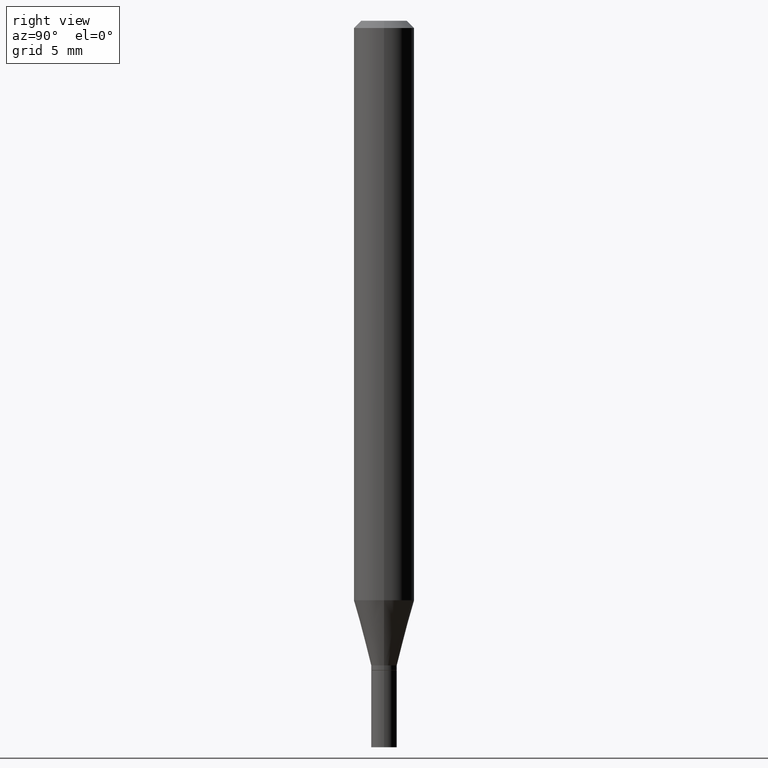
[diagram: clean part render]
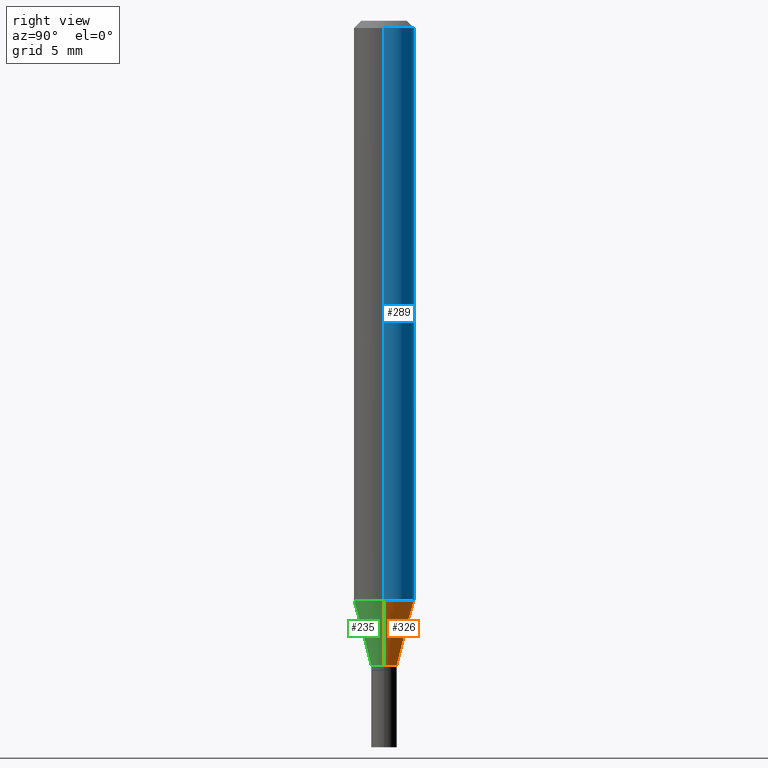
[diagram: same view with three faces highlighted in distinct colors, each labeled with its STEP entity id]
A machine part, right view with three faces highlighted in distinct colors.
Their STEP definitions:

[orange] entity #326 — the highlighted conical surface has half-angle 15 deg.
#30 = DIRECTION ( 'NONE',  ( -2.445468806185136597E-29, 3.491481338843145583E-15, 1.000000000000000000 ) ) ;
#42 = CARTESIAN_POINT ( 'NONE',  ( 0.02649999999999992639, -4.832210172958911994E-15, -1.331000000000000183 ) ) ;
#53 = ORIENTED_EDGE ( 'NONE', *, *, #429, .T. ) ;
#67 = ORIENTED_EDGE ( 'NONE', *, *, #367, .F. ) ;
#77 = EDGE_LOOP ( 'NONE', ( #457, #53, #80, #67 ) ) ;
#80 = ORIENTED_EDGE ( 'NONE', *, *, #128, .F. ) ;
#105 = VERTEX_POINT ( 'NONE', #346 ) ;
#119 = DIRECTION ( 'NONE',  ( 1.000000000000000000, -6.982962677686260400E-15, 0.000000000000000000 ) ) ;
#127 = DIRECTION ( 'NONE',  ( -2.445468806185136597E-29, 3.491481338843145583E-15, 1.000000000000000000 ) ) ;
#128 = EDGE_CURVE ( 'NONE', #390, #105, #287, .T. ) ;
#149 = CARTESIAN_POINT ( 'NONE',  ( 2.926360883044138788E-29, -4.178067774991542695E-15, -1.196646170927520458 ) ) ;
#165 = EDGE_CURVE ( 'NONE', #421, #200, #228, .T. ) ;
#174 = FACE_OUTER_BOUND ( 'NONE', #77, .T. ) ;
#182 = AXIS2_PLACEMENT_3D ( 'NONE', #275, #127, #119 ) ;
#200 = VERTEX_POINT ( 'NONE', #292 ) ;
#202 = DIRECTION ( 'NONE',  ( -0.2588190451025211836, 5.211531920934547886E-15, 0.9659258262890679791 ) ) ;
#223 = CARTESIAN_POINT ( 'NONE',  ( 0.02649999999999992639, -4.832210172958911994E-15, -1.331000000000000183 ) ) ;
#228 = CIRCLE ( 'NONE', #407, 0.02649999999999992639 ) ;
#236 = CONICAL_SURFACE ( 'NONE', #182, 0.02649999999999992639, 0.2617993877991499074 ) ;
#252 = DIRECTION ( 'NONE',  ( -2.445468806185136597E-29, 3.491481338843145583E-15, 1.000000000000000000 ) ) ;
#275 = CARTESIAN_POINT ( 'NONE',  ( 3.254918981032417030E-29, -4.647161662000227094E-15, -1.331000000000000183 ) ) ;
#287 = CIRCLE ( 'NONE', #394, 0.06250000000000000000 ) ;
#290 = DIRECTION ( 'NONE',  ( 0.2588190451025211836, 1.565188264969622559E-15, 0.9659258262890679791 ) ) ;
#292 = CARTESIAN_POINT ( 'NONE',  ( -0.02649999999999992639, -4.096423201082640425E-15, -1.331000000000000183 ) ) ;
#316 = DIRECTION ( 'NONE',  ( 1.000000000000000000, -6.982962677686270655E-15, 0.000000000000000000 ) ) ;
#326 = ADVANCED_FACE ( 'NONE', ( #174 ), #236, .T. ) ;
#346 = CARTESIAN_POINT ( 'NONE',  ( -0.06250000000000000000, -3.733978565141479290E-15, -1.196646170927520458 ) ) ;
#367 = EDGE_CURVE ( 'NONE', #421, #390, #466, .T. ) ;
#371 = VECTOR ( 'NONE', #202, 39.37007874015748854 ) ;
#381 = CARTESIAN_POINT ( 'NONE',  ( 3.254918981032417030E-29, -4.647161662000227094E-15, -1.331000000000000183 ) ) ;
#386 = DIRECTION ( 'NONE',  ( 1.000000000000000000, -6.982962677686260400E-15, 0.000000000000000000 ) ) ;
#390 = VERTEX_POINT ( 'NONE', #395 ) ;
#394 = AXIS2_PLACEMENT_3D ( 'NONE', #149, #252, #316 ) ;
#395 = CARTESIAN_POINT ( 'NONE',  ( 0.06250000000000000000, -4.614502942346933576E-15, -1.196646170927520458 ) ) ;
#401 = LINE ( 'NONE', #408, #371 ) ;
#407 = AXIS2_PLACEMENT_3D ( 'NONE', #381, #30, #386 ) ;
#408 = CARTESIAN_POINT ( 'NONE',  ( -0.02649999999999992639, -4.458867837023800771E-15, -1.331000000000000183 ) ) ;
#421 = VERTEX_POINT ( 'NONE', #42 ) ;
#429 = EDGE_CURVE ( 'NONE', #200, #105, #401, .T. ) ;
#438 = VECTOR ( 'NONE', #290, 39.37007874015748854 ) ;
#457 = ORIENTED_EDGE ( 'NONE', *, *, #165, .T. ) ;
#466 = LINE ( 'NONE', #223, #438 ) ;

[blue] entity #289 — the highlighted cylindrical surface (edge-blend (fillet) strip) has radius 1.5875 mm, axis along (-0, 0, 1).
#3 = ORIENTED_EDGE ( 'NONE', *, *, #406, .F. ) ;
#13 = ORIENTED_EDGE ( 'NONE', *, *, #177, .F. ) ;
#15 = DIRECTION ( 'NONE',  ( 1.000000000000000000, -6.982962677686266711E-15, 0.000000000000000000 ) ) ;
#25 = DIRECTION ( 'NONE',  ( -2.445468806185136597E-29, 3.491481338843145583E-15, 1.000000000000000000 ) ) ;
#27 = ORIENTED_EDGE ( 'NONE', *, *, #128, .T. ) ;
#48 = EDGE_LOOP ( 'NONE', ( #27, #136, #3, #13 ) ) ;
#52 = CYLINDRICAL_SURFACE ( 'NONE', #313, 0.06250000000000000000 ) ;
#55 = CARTESIAN_POINT ( 'NONE',  ( 0.000000000000000000, 0.000000000000000000, 0.000000000000000000 ) ) ;
#65 = VERTEX_POINT ( 'NONE', #305 ) ;
#73 = DIRECTION ( 'NONE',  ( -2.445468806185136597E-29, 3.491481338843145583E-15, 1.000000000000000000 ) ) ;
#86 = VECTOR ( 'NONE', #352, 39.37007874015748143 ) ;
#105 = VERTEX_POINT ( 'NONE', #346 ) ;
#123 = AXIS2_PLACEMENT_3D ( 'NONE', #375, #73, #15 ) ;
#128 = EDGE_CURVE ( 'NONE', #390, #105, #287, .T. ) ;
#136 = ORIENTED_EDGE ( 'NONE', *, *, #159, .T. ) ;
#149 = CARTESIAN_POINT ( 'NONE',  ( 2.926360883044138788E-29, -4.178067774991542695E-15, -1.196646170927520458 ) ) ;
#159 = EDGE_CURVE ( 'NONE', #105, #192, #212, .T. ) ;
#177 = EDGE_CURVE ( 'NONE', #390, #65, #397, .T. ) ;
#179 = DIRECTION ( 'NONE',  ( -2.445468806185136877E-29, 3.491481338843145188E-15, 1.000000000000000000 ) ) ;
#183 = CIRCLE ( 'NONE', #123, 0.06250000000000000000 ) ;
#192 = VERTEX_POINT ( 'NONE', #222 ) ;
#199 = VECTOR ( 'NONE', #179, 39.37007874015748143 ) ;
#212 = LINE ( 'NONE', #248, #86 ) ;
#222 = CARTESIAN_POINT ( 'NONE',  ( -0.06250000000000000000, -1.671130787687032468E-15, -0.01499999999999999944 ) ) ;
#248 = CARTESIAN_POINT ( 'NONE',  ( -0.06250000000000000000, 4.440892098500626162E-16, -3.074334431409316114E-30 ) ) ;
#252 = DIRECTION ( 'NONE',  ( -2.445468806185136597E-29, 3.491481338843145583E-15, 1.000000000000000000 ) ) ;
#260 = CARTESIAN_POINT ( 'NONE',  ( 0.06250000000000000000, -4.364351673553916694E-16, 3.047610484872459871E-30 ) ) ;
#287 = CIRCLE ( 'NONE', #394, 0.06250000000000000000 ) ;
#289 = ADVANCED_FACE ( 'NONE', ( #372 ), #52, .T. ) ;
#305 = CARTESIAN_POINT ( 'NONE',  ( 0.06250000000000000000, -4.888073874380388472E-16, -0.01499999999999999944 ) ) ;
#313 = AXIS2_PLACEMENT_3D ( 'NONE', #55, #25, #378 ) ;
#316 = DIRECTION ( 'NONE',  ( 1.000000000000000000, -6.982962677686270655E-15, 0.000000000000000000 ) ) ;
#346 = CARTESIAN_POINT ( 'NONE',  ( -0.06250000000000000000, -3.733978565141479290E-15, -1.196646170927520458 ) ) ;
#352 = DIRECTION ( 'NONE',  ( -2.445468806185136877E-29, 3.491481338843145188E-15, 1.000000000000000000 ) ) ;
#372 = FACE_OUTER_BOUND ( 'NONE', #48, .T. ) ;
#375 = CARTESIAN_POINT ( 'NONE',  ( 3.668203209277705088E-31, -5.237222008264718399E-17, -0.01499999999999999944 ) ) ;
#378 = DIRECTION ( 'NONE',  ( 1.000000000000000000, -6.982962677686266711E-15, 4.876176775795935793E-29 ) ) ;
#390 = VERTEX_POINT ( 'NONE', #395 ) ;
#394 = AXIS2_PLACEMENT_3D ( 'NONE', #149, #252, #316 ) ;
#395 = CARTESIAN_POINT ( 'NONE',  ( 0.06250000000000000000, -4.614502942346933576E-15, -1.196646170927520458 ) ) ;
#397 = LINE ( 'NONE', #260, #199 ) ;
#406 = EDGE_CURVE ( 'NONE', #65, #192, #183, .T. ) ;

[green] entity #235 — the highlighted conical surface has half-angle 15 deg.
#5 = FACE_OUTER_BOUND ( 'NONE', #74, .T. ) ;
#14 = EDGE_CURVE ( 'NONE', #105, #390, #370, .T. ) ;
#23 = ORIENTED_EDGE ( 'NONE', *, *, #429, .F. ) ;
#42 = CARTESIAN_POINT ( 'NONE',  ( 0.02649999999999992639, -4.832210172958911994E-15, -1.331000000000000183 ) ) ;
#74 = EDGE_LOOP ( 'NONE', ( #23, #444, #284, #356 ) ) ;
#105 = VERTEX_POINT ( 'NONE', #346 ) ;
#124 = CARTESIAN_POINT ( 'NONE',  ( 3.254918981032417030E-29, -4.647161662000227094E-15, -1.331000000000000183 ) ) ;
#157 = CARTESIAN_POINT ( 'NONE',  ( 3.254918981032417030E-29, -4.647161662000227094E-15, -1.331000000000000183 ) ) ;
#200 = VERTEX_POINT ( 'NONE', #292 ) ;
#202 = DIRECTION ( 'NONE',  ( -0.2588190451025211836, 5.211531920934547886E-15, 0.9659258262890679791 ) ) ;
#204 = AXIS2_PLACEMENT_3D ( 'NONE', #157, #335, #428 ) ;
#223 = CARTESIAN_POINT ( 'NONE',  ( 0.02649999999999992639, -4.832210172958911994E-15, -1.331000000000000183 ) ) ;
#235 = ADVANCED_FACE ( 'NONE', ( #5 ), #404, .T. ) ;
#240 = CARTESIAN_POINT ( 'NONE',  ( 2.926360883044138788E-29, -4.178067774991542695E-15, -1.196646170927520458 ) ) ;
#268 = AXIS2_PLACEMENT_3D ( 'NONE', #240, #377, #342 ) ;
#270 = DIRECTION ( 'NONE',  ( -2.445468806185136597E-29, 3.491481338843145583E-15, 1.000000000000000000 ) ) ;
#284 = ORIENTED_EDGE ( 'NONE', *, *, #367, .T. ) ;
#290 = DIRECTION ( 'NONE',  ( 0.2588190451025211836, 1.565188264969622559E-15, 0.9659258262890679791 ) ) ;
#292 = CARTESIAN_POINT ( 'NONE',  ( -0.02649999999999992639, -4.096423201082640425E-15, -1.331000000000000183 ) ) ;
#306 = DIRECTION ( 'NONE',  ( 1.000000000000000000, -6.982962677686260400E-15, 0.000000000000000000 ) ) ;
#323 = AXIS2_PLACEMENT_3D ( 'NONE', #124, #270, #306 ) ;
#335 = DIRECTION ( 'NONE',  ( -2.445468806185136597E-29, 3.491481338843145583E-15, 1.000000000000000000 ) ) ;
#342 = DIRECTION ( 'NONE',  ( 1.000000000000000000, -6.982962677686270655E-15, 0.000000000000000000 ) ) ;
#346 = CARTESIAN_POINT ( 'NONE',  ( -0.06250000000000000000, -3.733978565141479290E-15, -1.196646170927520458 ) ) ;
#356 = ORIENTED_EDGE ( 'NONE', *, *, #14, .F. ) ;
#367 = EDGE_CURVE ( 'NONE', #421, #390, #466, .T. ) ;
#370 = CIRCLE ( 'NONE', #268, 0.06250000000000000000 ) ;
#371 = VECTOR ( 'NONE', #202, 39.37007874015748854 ) ;
#377 = DIRECTION ( 'NONE',  ( -2.445468806185136597E-29, 3.491481338843145583E-15, 1.000000000000000000 ) ) ;
#390 = VERTEX_POINT ( 'NONE', #395 ) ;
#395 = CARTESIAN_POINT ( 'NONE',  ( 0.06250000000000000000, -4.614502942346933576E-15, -1.196646170927520458 ) ) ;
#401 = LINE ( 'NONE', #408, #371 ) ;
#403 = EDGE_CURVE ( 'NONE', #200, #421, #431, .T. ) ;
#404 = CONICAL_SURFACE ( 'NONE', #204, 0.02649999999999992639, 0.2617993877991499074 ) ;
#408 = CARTESIAN_POINT ( 'NONE',  ( -0.02649999999999992639, -4.458867837023800771E-15, -1.331000000000000183 ) ) ;
#421 = VERTEX_POINT ( 'NONE', #42 ) ;
#428 = DIRECTION ( 'NONE',  ( 1.000000000000000000, -6.982962677686260400E-15, 0.000000000000000000 ) ) ;
#429 = EDGE_CURVE ( 'NONE', #200, #105, #401, .T. ) ;
#431 = CIRCLE ( 'NONE', #323, 0.02649999999999992639 ) ;
#438 = VECTOR ( 'NONE', #290, 39.37007874015748854 ) ;
#444 = ORIENTED_EDGE ( 'NONE', *, *, #403, .T. ) ;
#466 = LINE ( 'NONE', #223, #438 ) ;